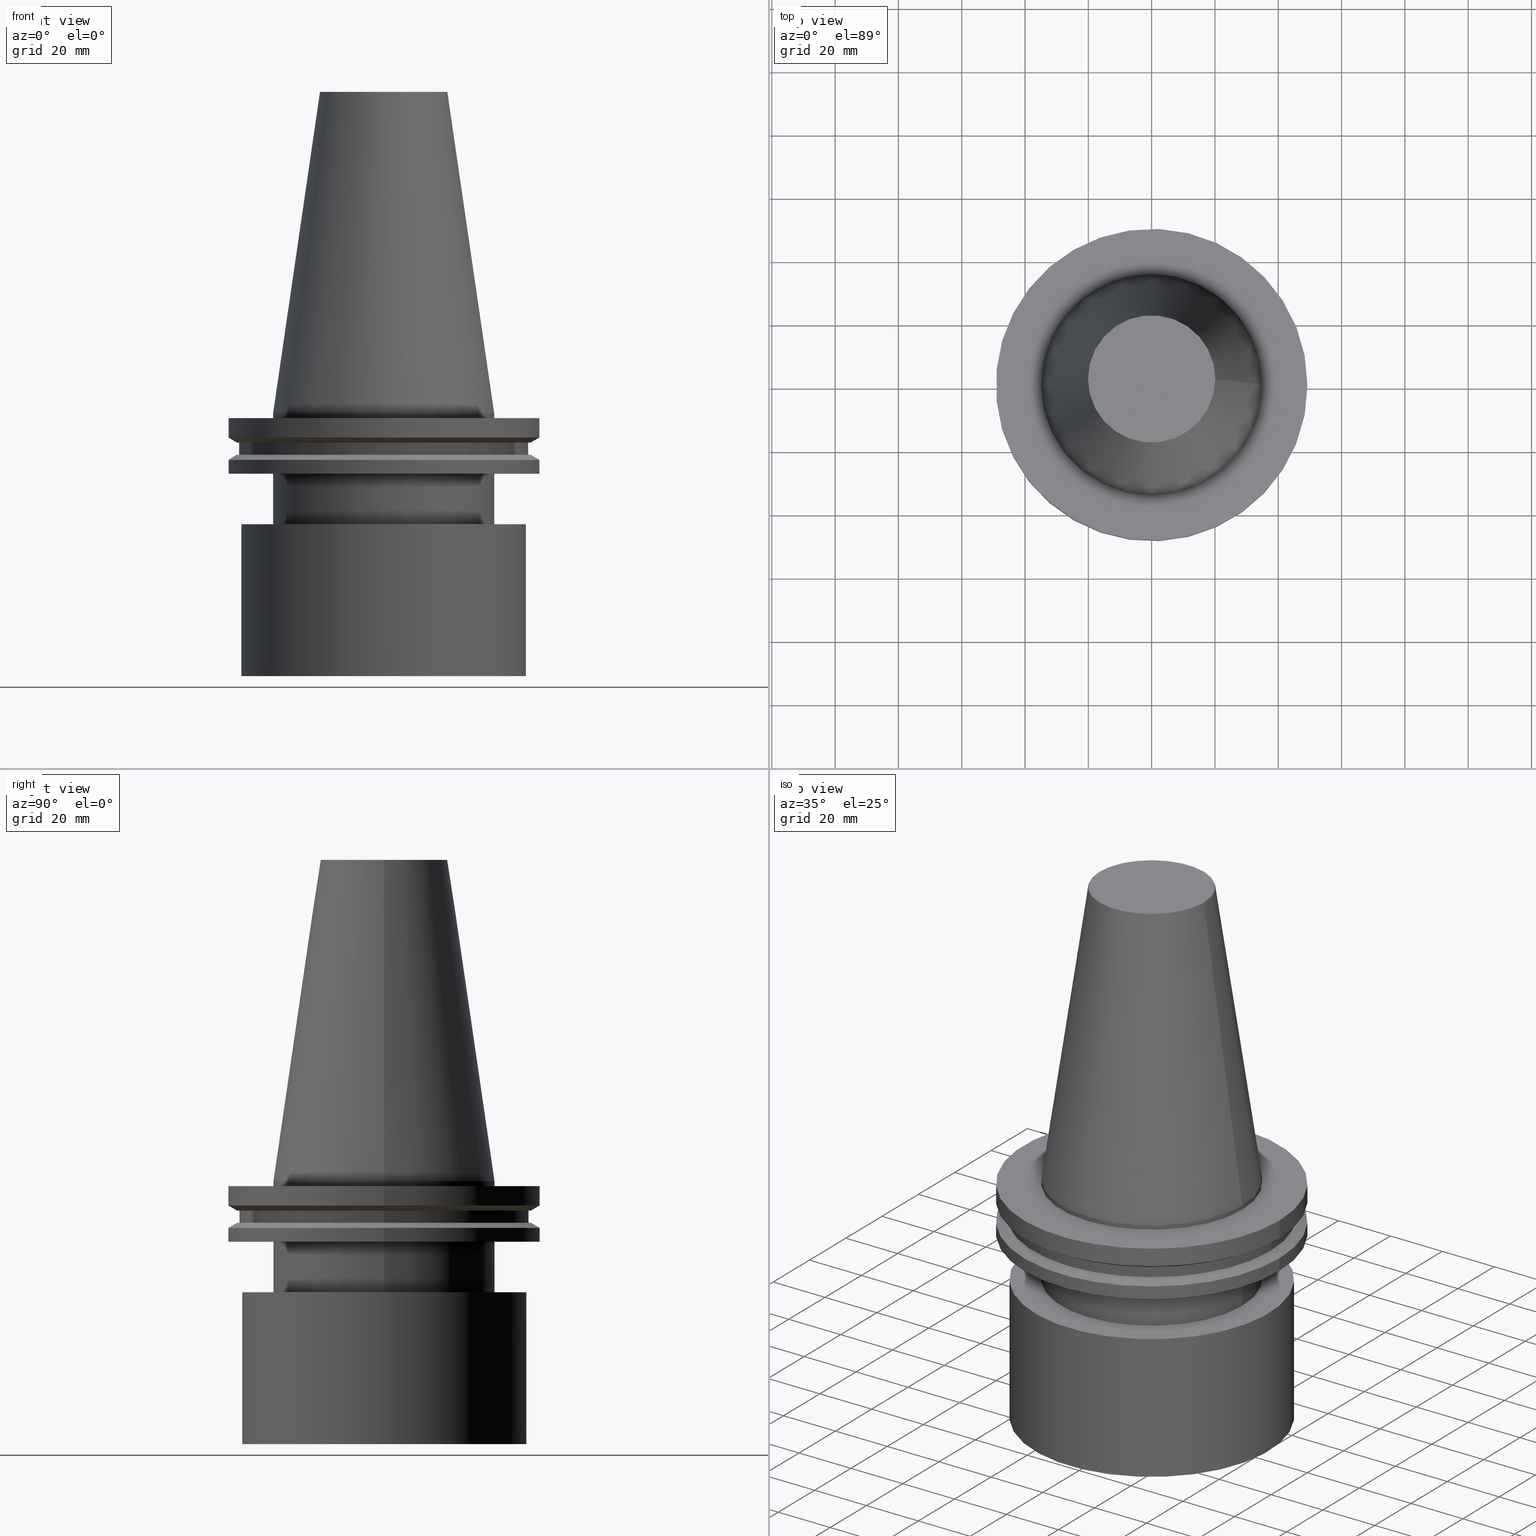
[diagram: canonical four-view strip — front | top / right | iso, engineering-drawing reading convention]
A machine part, canonical four-view strip (front | top / right | iso — engineering-drawing reading convention). The complete STEP part file that produces these views, byte-faithful:
ISO-10303-21;
HEADER;
FILE_DESCRIPTION (( 'STEP AP203' ),
    '1' );
FILE_NAME ('11.326.974.stp',
    '2022-03-09T15:09:26',
    ( '' ),
    ( '' ),
    'SwSTEP 2.0',
    'SolidWorks 2021',
    '' );
FILE_SCHEMA (( 'CONFIG_CONTROL_DESIGN' ));
ENDSEC;

DATA;
#1 = FACE_BOUND ( 'NONE', #127, .T. ) ;
#2 = VERTEX_POINT ( 'NONE', #373 ) ;
#3 = AXIS2_PLACEMENT_3D ( 'NONE', #23, #105, #293 ) ;
#4 = CARTESIAN_POINT ( 'NONE',  ( 20.10819343178871321, 0.000000000000000000, 101.5999999999999801 ) ) ;
#5 = DIRECTION ( 'NONE',  ( 0.000000000000000000, -1.000000000000000000, -3.576656801789151849E-17 ) ) ;
#6 = PRODUCT_RELATED_PRODUCT_CATEGORY ( 'detail', '', ( #196 ) ) ;
#7 = APPROVAL_DATE_TIME ( #289, #248 ) ;
#8 = EDGE_LOOP ( 'NONE', ( #227 ) ) ;
#9 = FACE_BOUND ( 'NONE', #8, .T. ) ;
#10 = EDGE_LOOP ( 'NONE', ( #63 ) ) ;
#11 = CC_DESIGN_APPROVAL ( #248, ( #361 ) ) ;
#12 = EDGE_LOOP ( 'NONE', ( #259 ) ) ;
#13 = CC_DESIGN_PERSON_AND_ORGANIZATION_ASSIGNMENT ( #96, #282, ( #361 ) ) ;
#14 = CYLINDRICAL_SURFACE ( 'NONE', #368, 45.64500000000000313 ) ;
#15 = COORDINATED_UNIVERSAL_TIME_OFFSET ( 6, 0, .BEHIND. ) ;
#16 = APPROVAL_STATUS ( 'not_yet_approved' ) ;
#17 = CARTESIAN_POINT ( 'NONE',  ( 0.000000000000000000, 0.000000000000000000, -13.05499999999999794 ) ) ;
#18 = FACE_OUTER_BOUND ( 'NONE', #265, .T. ) ;
#19 = CARTESIAN_POINT ( 'NONE',  ( 0.000000000000000000, 0.000000000000000000, -9.204999999999991189 ) ) ;
#20 = DIRECTION ( 'NONE',  ( 1.000000000000000000, 0.000000000000000000, 0.000000000000000000 ) ) ;
#21 = DIRECTION ( 'NONE',  ( 1.000000000000000000, 0.000000000000000000, 0.000000000000000000 ) ) ;
#22 = CYLINDRICAL_SURFACE ( 'NONE', #341, 49.21499999999998920 ) ;
#23 = CARTESIAN_POINT ( 'NONE',  ( 0.000000000000000000, 49.21499999999999631, -1.499999999999992895 ) ) ;
#24 = CARTESIAN_POINT ( 'NONE',  ( 0.000000000000000000, 0.000000000000000000, -7.602389855251287187 ) ) ;
#25 = CARTESIAN_POINT ( 'NONE',  ( 0.000000000000000000, 44.99609999999999843, -35.00000000000000000 ) ) ;
#26 = AXIS2_PLACEMENT_3D ( 'NONE', #358, #77, #108 ) ;
#27 = VERTEX_POINT ( 'NONE', #88 ) ;
#28 = EDGE_LOOP ( 'NONE', ( #87 ) ) ;
#29 = CC_DESIGN_PERSON_AND_ORGANIZATION_ASSIGNMENT ( #128, #380, ( #196 ) ) ;
#30 = DIRECTION ( 'NONE',  ( 0.000000000000000000, -3.576656801789151849E-17, 1.000000000000000000 ) ) ;
#31 = ORIENTED_EDGE ( 'NONE', *, *, #111, .T. ) ;
#32 = AXIS2_PLACEMENT_3D ( 'NONE', #189, #317, #94 ) ;
#33 = CIRCLE ( 'NONE', #86, 34.92499999999999005 ) ;
#34 = EDGE_LOOP ( 'NONE', ( #314 ) ) ;
#35 = CARTESIAN_POINT ( 'NONE',  ( 0.000000000000000000, 0.000000000000000000, 101.5999999999999943 ) ) ;
#36 = EDGE_CURVE ( 'NONE', #369, #369, #393, .T. ) ;
#37 = CC_DESIGN_SECURITY_CLASSIFICATION ( #272, ( #208 ) ) ;
#38 = FACE_OUTER_BOUND ( 'NONE', #190, .T. ) ;
#39 = EDGE_LOOP ( 'NONE', ( #319 ) ) ;
#40 = DIRECTION ( 'NONE',  ( 0.000000000000000000, 0.000000000000000000, -1.000000000000000000 ) ) ;
#41 = FACE_BOUND ( 'NONE', #188, .T. ) ;
#42 = FACE_OUTER_BOUND ( 'NONE', #95, .T. ) ;
#43 = APPROVAL_DATE_TIME ( #197, #98 ) ;
#44 = FACE_OUTER_BOUND ( 'NONE', #215, .T. ) ;
#45 = DIRECTION ( 'NONE',  ( 1.000000000000000000, 0.000000000000000000, 0.000000000000000000 ) ) ;
#46 = DIRECTION ( 'NONE',  ( -0.000000000000000000, -0.000000000000000000, 1.000000000000000000 ) ) ;
#47 = FACE_OUTER_BOUND ( 'NONE', #262, .T. ) ;
#48 = CIRCLE ( 'NONE', #224, 34.92499999999999716 ) ;
#49 = PERSON_AND_ORGANIZATION ( #200, #60 ) ;
#50 = EDGE_CURVE ( 'NONE', #280, #280, #220, .T. ) ;
#51 = ORIENTED_EDGE ( 'NONE', *, *, #288, .F. ) ;
#52 = DATE_AND_TIME ( #173, #99 ) ;
#53 = EDGE_LOOP ( 'NONE', ( #64 ) ) ;
#54 = ADVANCED_FACE ( 'NONE', ( #329, #364 ), #22, .T. ) ;
#55 = PERSON_AND_ORGANIZATION ( #200, #60 ) ;
#56 = AXIS2_PLACEMENT_3D ( 'NONE', #130, #40, #164 ) ;
#57 = EDGE_LOOP ( 'NONE', ( #150 ) ) ;
#58 = CARTESIAN_POINT ( 'NONE',  ( 45.64500000000000313, 0.000000000000000000, -9.204999999999991189 ) ) ;
#59 = EDGE_LOOP ( 'NONE', ( #306 ) ) ;
#60 = ORGANIZATION ( 'UNSPECIFIED', 'UNSPECIFIED', '' ) ;
#61 = APPROVAL_PERSON_ORGANIZATION ( #55, #366, #181 ) ;
#62 = AXIS2_PLACEMENT_3D ( 'NONE', #17, #385, #323 ) ;
#63 = ORIENTED_EDGE ( 'NONE', *, *, #203, .T. ) ;
#64 = ORIENTED_EDGE ( 'NONE', *, *, #124, .T. ) ;
#65 = DIRECTION ( 'NONE',  ( 1.000000000000000000, 0.000000000000000000, 0.000000000000000000 ) ) ;
#66 = EDGE_LOOP ( 'NONE', ( #31 ) ) ;
#67 = MECHANICAL_CONTEXT ( 'NONE', #296, 'mechanical' ) ;
#68 = LOCAL_TIME ( 9, 9, 26.00000000000000000, #15 ) ;
#69 = EDGE_LOOP ( 'NONE', ( #131 ) ) ;
#70 = DIRECTION ( 'NONE',  ( 1.000000000000000000, 0.000000000000000000, 0.000000000000000000 ) ) ;
#71 = PERSON_AND_ORGANIZATION ( #200, #60 ) ;
#72 = CARTESIAN_POINT ( 'NONE',  ( 0.000000000000000000, 0.000000000000000000, 101.5999999999999943 ) ) ;
#73 = APPROVAL_STATUS ( 'not_yet_approved' ) ;
#74 = DIRECTION ( 'NONE',  ( 0.000000000000000000, 0.000000000000000000, -1.000000000000000000 ) ) ;
#75 = CARTESIAN_POINT ( 'NONE',  ( 0.000000000000000000, 0.000000000000000000, -1.499999999999987566 ) ) ;
#76 = DIRECTION ( 'NONE',  ( 1.000000000000000000, 0.000000000000000000, 0.000000000000000000 ) ) ;
#77 = DIRECTION ( 'NONE',  ( -0.000000000000000000, -0.000000000000000000, 1.000000000000000000 ) ) ;
#78 = AXIS2_PLACEMENT_3D ( 'NONE', #19, #136, #268 ) ;
#79 = CARTESIAN_POINT ( 'NONE',  ( 0.000000000000000000, 0.000000000000000000, 0.000000000000000000 ) ) ;
#80 = FACE_OUTER_BOUND ( 'NONE', #28, .T. ) ;
#81 = DIRECTION ( 'NONE',  ( -0.000000000000000000, 3.576656801789151849E-17, -1.000000000000000000 ) ) ;
#82 = DIRECTION ( 'NONE',  ( 1.000000000000000000, 0.000000000000000000, 0.000000000000000000 ) ) ;
#83 = EDGE_CURVE ( 'NONE', #335, #335, #109, .T. ) ;
#84 = CARTESIAN_POINT ( 'NONE',  ( 34.92499999999999716, 0.000000000000000000, -35.00000000000000000 ) ) ;
#85 = AXIS2_PLACEMENT_3D ( 'NONE', #247, #30, #5 ) ;
#86 = AXIS2_PLACEMENT_3D ( 'NONE', #390, #389, #21 ) ;
#87 = ORIENTED_EDGE ( 'NONE', *, *, #36, .T. ) ;
#88 = CARTESIAN_POINT ( 'NONE',  ( 0.000000000000000000, 44.99609999999999843, -83.00719999999999743 ) ) ;
#89 = CIRCLE ( 'NONE', #349, 44.99609999999999843 ) ;
#90 = VERTEX_POINT ( 'NONE', #144 ) ;
#91 = PLANE ( 'NONE',  #56 ) ;
#92 = ADVANCED_FACE ( 'NONE', ( #198 ), #395, .T. ) ;
#93 = AXIS2_PLACEMENT_3D ( 'NONE', #267, #101, #235 ) ;
#94 = DIRECTION ( 'NONE',  ( -1.000000000000000000, 0.000000000000000000, 0.000000000000000000 ) ) ;
#95 = EDGE_LOOP ( 'NONE', ( #346 ) ) ;
#96 = PERSON_AND_ORGANIZATION ( #200, #60 ) ;
#97 = ORIENTED_EDGE ( 'NONE', *, *, #298, .F. ) ;
#98 = APPROVAL ( #73, 'UNSPECIFIED' ) ;
#99 = LOCAL_TIME ( 9, 9, 26.00000000000000000, #137 ) ;
#100 = DIRECTION ( 'NONE',  ( 1.000000000000000000, 0.000000000000000000, 0.000000000000000000 ) ) ;
#101 = DIRECTION ( 'NONE',  ( -0.000000000000000000, -0.000000000000000000, 1.000000000000000000 ) ) ;
#102 = DIRECTION ( 'NONE',  ( 0.000000000000000000, 1.000000000000000000, 0.000000000000000000 ) ) ;
#103 = ADVANCED_FACE ( 'NONE', ( #41, #332 ), #352, .F. ) ;
#104 = DIRECTION ( 'NONE',  ( 1.000000000000000000, 0.000000000000000000, 0.000000000000000000 ) ) ;
#105 = DIRECTION ( 'NONE',  ( 0.000000000000000000, 0.000000000000000000, -1.000000000000000000 ) ) ;
#106 = DIRECTION ( 'NONE',  ( -0.000000000000000000, -0.000000000000000000, 1.000000000000000000 ) ) ;
#107 = AXIS2_PLACEMENT_3D ( 'NONE', #290, #254, #374 ) ;
#108 = DIRECTION ( 'NONE',  ( 1.000000000000000000, 0.000000000000000000, 0.000000000000000000 ) ) ;
#109 = CIRCLE ( 'NONE', #307, 49.21499999999999631 ) ;
#110 = CARTESIAN_POINT ( 'NONE',  ( 0.000000000000000000, 0.000000000000000000, 101.5999999999999801 ) ) ;
#111 = EDGE_CURVE ( 'NONE', #149, #149, #33, .T. ) ;
#112 = FACE_OUTER_BOUND ( 'NONE', #34, .T. ) ;
#113 = CARTESIAN_POINT ( 'NONE',  ( 49.21499999999998920, 0.000000000000000000, -19.04999999999999716 ) ) ;
#114 = AXIS2_PLACEMENT_3D ( 'NONE', #177, #363, #100 ) ;
#115 = ADVANCED_FACE ( 'NONE', ( #138, #292 ), #174, .F. ) ;
#116 =( LENGTH_UNIT ( ) NAMED_UNIT ( * ) SI_UNIT ( .MILLI., .METRE. ) );
#117 = CARTESIAN_POINT ( 'NONE',  ( 45.64500000000000313, 0.000000000000000000, -13.05499999999999794 ) ) ;
#118 = LOCAL_TIME ( 9, 9, 26.00000000000000000, #351 ) ;
#119 = MANIFOLD_SOLID_BREP ( 'CKB', #159 ) ;
#120 = DATE_TIME_ROLE ( 'creation_date' ) ;
#121 = ADVANCED_FACE ( 'NONE', ( #360, #47 ), #269, .T. ) ;
#122 = ORIENTED_EDGE ( 'NONE', *, *, #288, .T. ) ;
#123 = DIRECTION ( 'NONE',  ( 0.000000000000000000, -0.000000000000000000, 1.000000000000000000 ) ) ;
#124 = EDGE_CURVE ( 'NONE', #311, #311, #246, .T. ) ;
#125 = AXIS2_PLACEMENT_3D ( 'NONE', #206, #301, #140 ) ;
#126 = AXIS2_PLACEMENT_3D ( 'NONE', #79, #139, #205 ) ;
#127 = EDGE_LOOP ( 'NONE', ( #348 ) ) ;
#128 = PERSON_AND_ORGANIZATION ( #200, #60 ) ;
#129 = ORIENTED_EDGE ( 'NONE', *, *, #353, .T. ) ;
#130 = CARTESIAN_POINT ( 'NONE',  ( 0.000000000000000000, 20.10819343178871321, 101.5999999999999943 ) ) ;
#131 = ORIENTED_EDGE ( 'NONE', *, *, #298, .T. ) ;
#132 = DIRECTION ( 'NONE',  ( -0.000000000000000000, -0.000000000000000000, 1.000000000000000000 ) ) ;
#133 = CYLINDRICAL_SURFACE ( 'NONE', #93, 34.92499999999999005 ) ;
#134 = PRODUCT_DEFINITION_SHAPE ( 'NONE', 'NONE',  #361 ) ;
#135 = CYLINDRICAL_SURFACE ( 'NONE', #302, 44.99609999999999843 ) ;
#136 = DIRECTION ( 'NONE',  ( -0.000000000000000000, -0.000000000000000000, 1.000000000000000000 ) ) ;
#137 = COORDINATED_UNIVERSAL_TIME_OFFSET ( 6, 0, .BEHIND. ) ;
#138 = FACE_OUTER_BOUND ( 'NONE', #12, .T. ) ;
#139 = DIRECTION ( 'NONE',  ( 0.000000000000000000, 0.000000000000000000, -1.000000000000000000 ) ) ;
#140 = DIRECTION ( 'NONE',  ( 1.000000000000000000, 0.000000000000000000, 0.000000000000000000 ) ) ;
#141 = DIRECTION ( 'NONE',  ( 1.000000000000000000, 0.000000000000000000, 0.000000000000000000 ) ) ;
#142 = ADVANCED_BREP_SHAPE_REPRESENTATION ( '11.326.974', ( #119, #313 ), #252 ) ;
#143 = VERTEX_POINT ( 'NONE', #245 ) ;
#144 = CARTESIAN_POINT ( 'NONE',  ( 49.21500000000000341, 0.000000000000000000, -7.602389855251287187 ) ) ;
#145 = CIRCLE ( 'NONE', #308, 49.21499999999998920 ) ;
#146 = ADVANCED_FACE ( 'NONE', ( #44, #242 ), #133, .T. ) ;
#147 = ORIENTED_EDGE ( 'NONE', *, *, #124, .F. ) ;
#148 = CC_DESIGN_PERSON_AND_ORGANIZATION_ASSIGNMENT ( #49, #275, ( #208 ) ) ;
#149 = VERTEX_POINT ( 'NONE', #211 ) ;
#150 = ORIENTED_EDGE ( 'NONE', *, *, #312, .F. ) ;
#151 = ADVANCED_FACE ( 'NONE', ( #354, #297 ), #260, .T. ) ;
#152 = EDGE_LOOP ( 'NONE', ( #51 ) ) ;
#153 = CARTESIAN_POINT ( 'NONE',  ( 0.000000000000000000, 49.21499999999998920, -19.04999999999999716 ) ) ;
#154 = ORIENTED_EDGE ( 'NONE', *, *, #50, .F. ) ;
#155 = FACE_OUTER_BOUND ( 'NONE', #160, .T. ) ;
#156 = EDGE_LOOP ( 'NONE', ( #226 ) ) ;
#157 = LOCAL_TIME ( 9, 9, 26.00000000000000000, #183 ) ;
#158 = CIRCLE ( 'NONE', #392, 49.21500000000000341 ) ;
#159 = CLOSED_SHELL ( 'NONE', ( #165, #229, #121, #218, #54, #251, #103, #225, #115, #151, #258, #277, #146, #384, #286, #92 ) ) ;
#160 = EDGE_LOOP ( 'NONE', ( #222 ) ) ;
#161 = FACE_OUTER_BOUND ( 'NONE', #212, .T. ) ;
#162 = APPROVAL_ROLE ( '' ) ;
#163 = ORIENTED_EDGE ( 'NONE', *, *, #203, .F. ) ;
#164 = DIRECTION ( 'NONE',  ( -1.000000000000000000, 0.000000000000000000, -0.000000000000000000 ) ) ;
#165 = ADVANCED_FACE ( 'NONE', ( #238, #300 ), #309, .T. ) ;
#166 = PLANE ( 'NONE',  #3 ) ;
#167 = PERSON_AND_ORGANIZATION ( #200, #60 ) ;
#168 = DIRECTION ( 'NONE',  ( -0.000000000000000000, -0.000000000000000000, 1.000000000000000000 ) ) ;
#169 = CARTESIAN_POINT ( 'NONE',  ( 0.000000000000000000, 1.717052784148521541E-15, -83.00719999999999743 ) ) ;
#170 = PERSON_AND_ORGANIZATION_ROLE ( 'classification_officer' ) ;
#171 = DIRECTION ( 'NONE',  ( -0.000000000000000000, -0.000000000000000000, 1.000000000000000000 ) ) ;
#172 = DIRECTION ( 'NONE',  ( -0.000000000000000000, 3.576656801789151849E-17, -1.000000000000000000 ) ) ;
#173 = CALENDAR_DATE ( 2022, 9, 3 ) ;
#174 = PLANE ( 'NONE',  #240 ) ;
#175 = CARTESIAN_POINT ( 'NONE',  ( 0.000000000000000000, 45.64500000000000313, -13.05499999999999794 ) ) ;
#176 = APPROVAL_PERSON_ORGANIZATION ( #71, #248, #162 ) ;
#177 = CARTESIAN_POINT ( 'NONE',  ( 0.000000000000000000, 0.000000000000000000, 101.5999999999999943 ) ) ;
#178 = DIRECTION ( 'NONE',  ( -0.000000000000000000, -0.000000000000000000, 1.000000000000000000 ) ) ;
#179 = VERTEX_POINT ( 'NONE', #305 ) ;
#180 = ORIENTED_EDGE ( 'NONE', *, *, #274, .F. ) ;
#181 = APPROVAL_ROLE ( '' ) ;
#182 = ORIENTED_EDGE ( 'NONE', *, *, #50, .T. ) ;
#183 = COORDINATED_UNIVERSAL_TIME_OFFSET ( 6, 0, .BEHIND. ) ;
#184 = EDGE_CURVE ( 'NONE', #2, #2, #310, .T. ) ;
#185 = CC_DESIGN_DATE_AND_TIME_ASSIGNMENT ( #52, #279, ( #272 ) ) ;
#186 = EDGE_LOOP ( 'NONE', ( #228 ) ) ;
#187 = DIRECTION ( 'NONE',  ( 1.000000000000000000, 0.000000000000000000, 0.000000000000000000 ) ) ;
#188 = EDGE_LOOP ( 'NONE', ( #147 ) ) ;
#189 = CARTESIAN_POINT ( 'NONE',  ( 0.000000000000000000, 0.000000000000000000, -14.65761014474876944 ) ) ;
#190 = EDGE_LOOP ( 'NONE', ( #180 ) ) ;
#191 = DIRECTION ( 'NONE',  ( -0.000000000000000000, -0.000000000000000000, 1.000000000000000000 ) ) ;
#192 = CIRCLE ( 'NONE', #26, 46.43919780457007818 ) ;
#193 = EDGE_LOOP ( 'NONE', ( #122 ) ) ;
#194 = FACE_OUTER_BOUND ( 'NONE', #53, .T. ) ;
#195 = CALENDAR_DATE ( 2022, 9, 3 ) ;
#196 = PRODUCT ( '11.326.974', '11.326.974', '', ( #67 ) ) ;
#197 = DATE_AND_TIME ( #195, #118 ) ;
#198 = FACE_OUTER_BOUND ( 'NONE', #69, .T. ) ;
#199 = CARTESIAN_POINT ( 'NONE',  ( 0.000000000000000000, 0.000000000000000000, -35.00000000000000000 ) ) ;
#200 = PERSON ( 'UNSPECIFIED', 'UNSPECIFIED', 'UNSPECIFIED', ('UNSPECIFIED'), ('UNSPECIFIED'), ('UNSPECIFIED') ) ;
#201 = AXIS2_PLACEMENT_3D ( 'NONE', #72, #106, #104 ) ;
#202 = DIRECTION ( 'NONE',  ( -1.000000000000000000, 0.000000000000000000, -0.000000000000000000 ) ) ;
#203 = EDGE_CURVE ( 'NONE', #90, #90, #158, .T. ) ;
#204 = DIRECTION ( 'NONE',  ( 1.000000000000000000, 0.000000000000000000, 0.000000000000000000 ) ) ;
#205 = DIRECTION ( 'NONE',  ( -1.000000000000000000, 0.000000000000000000, 0.000000000000000000 ) ) ;
#206 = CARTESIAN_POINT ( 'NONE',  ( 0.000000000000000000, 0.000000000000000000, -13.05499999999999794 ) ) ;
#207 = DIRECTION ( 'NONE',  ( 0.000000000000000000, 1.000000000000000000, 3.576656801789151849E-17 ) ) ;
#208 = PRODUCT_DEFINITION_FORMATION_WITH_SPECIFIED_SOURCE ( 'ANY', '', #196, .NOT_KNOWN. ) ;
#209 = VERTEX_POINT ( 'NONE', #334 ) ;
#210 = PERSON_AND_ORGANIZATION ( #200, #60 ) ;
#211 = CARTESIAN_POINT ( 'NONE',  ( 34.92499999999999005, 0.000000000000000000, 0.000000000000000000 ) ) ;
#212 = EDGE_LOOP ( 'NONE', ( #182 ) ) ;
#213 = APPROVAL_STATUS ( 'not_yet_approved' ) ;
#214 = VERTEX_POINT ( 'NONE', #339 ) ;
#215 = EDGE_LOOP ( 'NONE', ( #276 ) ) ;
#216 =( NAMED_UNIT ( * ) PLANE_ANGLE_UNIT ( ) SI_UNIT ( $, .RADIAN. ) );
#217 = CIRCLE ( 'NONE', #107, 45.64500000000000313 ) ;
#218 = ADVANCED_FACE ( 'NONE', ( #38, #315 ), #287, .F. ) ;
#219 = CC_DESIGN_APPROVAL ( #366, ( #272 ) ) ;
#220 = CIRCLE ( 'NONE', #359, 20.10819343178871321 ) ;
#221 = VERTEX_POINT ( 'NONE', #58 ) ;
#222 = ORIENTED_EDGE ( 'NONE', *, *, #83, .F. ) ;
#223 = FACE_OUTER_BOUND ( 'NONE', #39, .T. ) ;
#224 = AXIS2_PLACEMENT_3D ( 'NONE', #239, #46, #204 ) ;
#225 = ADVANCED_FACE ( 'NONE', ( #257, #194 ), #14, .T. ) ;
#226 = ORIENTED_EDGE ( 'NONE', *, *, #237, .T. ) ;
#227 = ORIENTED_EDGE ( 'NONE', *, *, #353, .F. ) ;
#228 = ORIENTED_EDGE ( 'NONE', *, *, #237, .F. ) ;
#229 = ADVANCED_FACE ( 'NONE', ( #161 ), #91, .F. ) ;
#230 = CONICAL_SURFACE ( 'NONE', #32, 49.21499999999998920, 1.047197551196554333 ) ;
#231 = AXIS2_PLACEMENT_3D ( 'NONE', #175, #74, #202 ) ;
#232 = CALENDAR_DATE ( 2022, 9, 3 ) ;
#233 = CARTESIAN_POINT ( 'NONE',  ( 0.000000000000000000, 46.43919780457007818, -9.204999999999998295 ) ) ;
#234 = DIRECTION ( 'NONE',  ( 1.000000000000000000, 0.000000000000000000, 0.000000000000000000 ) ) ;
#235 = DIRECTION ( 'NONE',  ( 1.000000000000000000, 0.000000000000000000, 0.000000000000000000 ) ) ;
#236 = DIRECTION ( 'NONE',  ( 1.000000000000000000, 0.000000000000000000, 0.000000000000000000 ) ) ;
#237 = EDGE_CURVE ( 'NONE', #221, #221, #217, .T. ) ;
#238 = FACE_BOUND ( 'NONE', #336, .T. ) ;
#239 = CARTESIAN_POINT ( 'NONE',  ( 0.000000000000000000, 0.000000000000000000, -19.04999999999999716 ) ) ;
#240 = AXIS2_PLACEMENT_3D ( 'NONE', #233, #327, #243 ) ;
#241 = AXIS2_PLACEMENT_3D ( 'NONE', #256, #375, #316 ) ;
#242 = FACE_OUTER_BOUND ( 'NONE', #193, .T. ) ;
#243 = DIRECTION ( 'NONE',  ( 1.000000000000000000, 0.000000000000000000, 0.000000000000000000 ) ) ;
#244 = PLANE ( 'NONE',  #85 ) ;
#245 = CARTESIAN_POINT ( 'NONE',  ( 34.92499999999999005, 0.000000000000000000, -1.499999999999987566 ) ) ;
#246 = CIRCLE ( 'NONE', #62, 45.64500000000000313 ) ;
#247 = CARTESIAN_POINT ( 'NONE',  ( 0.000000000000000000, 2.878057169260919058E-32, -35.00000000000000000 ) ) ;
#248 = APPROVAL ( #16, 'UNSPECIFIED' ) ;
#249 = CARTESIAN_POINT ( 'NONE',  ( 49.21499999999999631, 0.000000000000000000, -1.499999999999987566 ) ) ;
#250 = CALENDAR_DATE ( 2022, 9, 3 ) ;
#251 = ADVANCED_FACE ( 'NONE', ( #9, #223 ), #230, .T. ) ;
#252 =( GEOMETRIC_REPRESENTATION_CONTEXT ( 3 ) GLOBAL_UNCERTAINTY_ASSIGNED_CONTEXT ( ( #324 ) ) GLOBAL_UNIT_ASSIGNED_CONTEXT ( ( #116, #216, #347 ) ) REPRESENTATION_CONTEXT ( 'NONE', 'WORKASPACE' ) );
#253 = APPLICATION_PROTOCOL_DEFINITION ( 'international standard', 'config_control_design', 1994, #296 ) ;
#254 = DIRECTION ( 'NONE',  ( -0.000000000000000000, -0.000000000000000000, 1.000000000000000000 ) ) ;
#255 = APPROVAL_DATE_TIME ( #337, #366 ) ;
#256 = CARTESIAN_POINT ( 'NONE',  ( 0.000000000000000000, -1.925929944387235853E-31, -35.00000000000000000 ) ) ;
#257 = FACE_OUTER_BOUND ( 'NONE', #186, .T. ) ;
#258 = ADVANCED_FACE ( 'NONE', ( #155, #379 ), #345, .T. ) ;
#259 = ORIENTED_EDGE ( 'NONE', *, *, #338, .F. ) ;
#260 = CONICAL_SURFACE ( 'NONE', #78, 46.43919780457007818, 1.047197551196575205 ) ;
#261 = CC_DESIGN_PERSON_AND_ORGANIZATION_ASSIGNMENT ( #210, #170, ( #272 ) ) ;
#262 = EDGE_LOOP ( 'NONE', ( #263 ) ) ;
#263 = ORIENTED_EDGE ( 'NONE', *, *, #303, .T. ) ;
#264 = DATE_AND_TIME ( #322, #68 ) ;
#265 = EDGE_LOOP ( 'NONE', ( #97 ) ) ;
#266 = CC_DESIGN_DATE_AND_TIME_ASSIGNMENT ( #264, #120, ( #361 ) ) ;
#267 = CARTESIAN_POINT ( 'NONE',  ( 0.000000000000000000, 0.000000000000000000, 101.5999999999999943 ) ) ;
#268 = DIRECTION ( 'NONE',  ( 1.000000000000000000, 0.000000000000000000, 0.000000000000000000 ) ) ;
#269 = CYLINDRICAL_SURFACE ( 'NONE', #201, 34.92499999999999716 ) ;
#270 = FACE_BOUND ( 'NONE', #152, .T. ) ;
#271 = AXIS2_PLACEMENT_3D ( 'NONE', #75, #331, #236 ) ;
#272 = SECURITY_CLASSIFICATION ( '', '', #387 ) ;
#273 = DIRECTION ( 'NONE',  ( -0.000000000000000000, -0.000000000000000000, 1.000000000000000000 ) ) ;
#274 = EDGE_CURVE ( 'NONE', #371, #371, #145, .T. ) ;
#275 = PERSON_AND_ORGANIZATION_ROLE ( 'design_supplier' ) ;
#276 = ORIENTED_EDGE ( 'NONE', *, *, #111, .F. ) ;
#277 = ADVANCED_FACE ( 'NONE', ( #270, #42 ), #166, .F. ) ;
#278 = EDGE_LOOP ( 'NONE', ( #129 ) ) ;
#279 = DATE_TIME_ROLE ( 'classification_date' ) ;
#280 = VERTEX_POINT ( 'NONE', #4 ) ;
#281 = SHAPE_DEFINITION_REPRESENTATION ( #134, #142 ) ;
#282 = PERSON_AND_ORGANIZATION_ROLE ( 'creator' ) ;
#283 = LOCAL_TIME ( 9, 9, 26.00000000000000000, #356 ) ;
#284 = CC_DESIGN_APPROVAL ( #98, ( #208 ) ) ;
#285 = EDGE_LOOP ( 'NONE', ( #381 ) ) ;
#286 = ADVANCED_FACE ( 'NONE', ( #80, #18 ), #135, .T. ) ;
#287 = PLANE ( 'NONE',  #294 ) ;
#288 = EDGE_CURVE ( 'NONE', #143, #143, #320, .T. ) ;
#289 = DATE_AND_TIME ( #232, #283 ) ;
#290 = CARTESIAN_POINT ( 'NONE',  ( 0.000000000000000000, 0.000000000000000000, -9.204999999999991189 ) ) ;
#291 = APPLICATION_PROTOCOL_DEFINITION ( 'international standard', 'config_control_design', 1994, #365 ) ;
#292 = FACE_BOUND ( 'NONE', #156, .T. ) ;
#293 = DIRECTION ( 'NONE',  ( -1.000000000000000000, 0.000000000000000000, -0.000000000000000000 ) ) ;
#294 = AXIS2_PLACEMENT_3D ( 'NONE', #153, #123, #65 ) ;
#295 = PERSON_AND_ORGANIZATION_ROLE ( 'creator' ) ;
#296 = APPLICATION_CONTEXT ( 'configuration controlled 3d designs of mechanical parts and assemblies' ) ;
#297 = FACE_BOUND ( 'NONE', #59, .T. ) ;
#298 = EDGE_CURVE ( 'NONE', #27, #27, #89, .T. ) ;
#299 = CARTESIAN_POINT ( 'NONE',  ( 0.000000000000000000, 0.000000000000000000, -1.499999999999987566 ) ) ;
#300 = FACE_OUTER_BOUND ( 'NONE', #66, .T. ) ;
#301 = DIRECTION ( 'NONE',  ( -0.000000000000000000, -0.000000000000000000, 1.000000000000000000 ) ) ;
#302 = AXIS2_PLACEMENT_3D ( 'NONE', #386, #391, #102 ) ;
#303 = EDGE_CURVE ( 'NONE', #367, #367, #333, .T. ) ;
#304 = DIRECTION ( 'NONE',  ( 1.000000000000000000, 0.000000000000000000, 0.000000000000000000 ) ) ;
#305 = CARTESIAN_POINT ( 'NONE',  ( 46.43919780457007818, 0.000000000000000000, -13.05499999999999794 ) ) ;
#306 = ORIENTED_EDGE ( 'NONE', *, *, #338, .T. ) ;
#307 = AXIS2_PLACEMENT_3D ( 'NONE', #299, #273, #76 ) ;
#308 = AXIS2_PLACEMENT_3D ( 'NONE', #325, #132, #82 ) ;
#309 = CONICAL_SURFACE ( 'NONE', #126, 34.92499999999999005, 0.1448138465474119452 ) ;
#310 = CIRCLE ( 'NONE', #340, 49.21499999999998920 ) ;
#311 = VERTEX_POINT ( 'NONE', #117 ) ;
#312 = EDGE_CURVE ( 'NONE', #209, #209, #48, .T. ) ;
#313 = AXIS2_PLACEMENT_3D ( 'NONE', #321, #388, #234 ) ;
#314 = ORIENTED_EDGE ( 'NONE', *, *, #36, .F. ) ;
#315 = FACE_BOUND ( 'NONE', #343, .T. ) ;
#316 = DIRECTION ( 'NONE',  ( 0.000000000000000000, 1.000000000000000000, 0.000000000000000000 ) ) ;
#317 = DIRECTION ( 'NONE',  ( 0.000000000000000000, 0.000000000000000000, -1.000000000000000000 ) ) ;
#318 = EDGE_LOOP ( 'NONE', ( #163 ) ) ;
#319 = ORIENTED_EDGE ( 'NONE', *, *, #184, .T. ) ;
#320 = CIRCLE ( 'NONE', #271, 34.92499999999999005 ) ;
#321 = CARTESIAN_POINT ( 'NONE',  ( 0.000000000000000000, 0.000000000000000000, 0.000000000000000000 ) ) ;
#322 = CALENDAR_DATE ( 2022, 9, 3 ) ;
#323 = DIRECTION ( 'NONE',  ( 1.000000000000000000, 0.000000000000000000, 0.000000000000000000 ) ) ;
#324 = UNCERTAINTY_MEASURE_WITH_UNIT (LENGTH_MEASURE( 1.000000000000000082E-05 ), #116, 'distance_accuracy_value', 'NONE');
#325 = CARTESIAN_POINT ( 'NONE',  ( 0.000000000000000000, 0.000000000000000000, -19.04999999999999716 ) ) ;
#326 = PERSON_AND_ORGANIZATION ( #200, #60 ) ;
#327 = DIRECTION ( 'NONE',  ( 0.000000000000000000, -0.000000000000000000, 1.000000000000000000 ) ) ;
#328 = DIRECTION ( 'NONE',  ( -0.000000000000000000, -0.000000000000000000, 1.000000000000000000 ) ) ;
#329 = FACE_OUTER_BOUND ( 'NONE', #285, .T. ) ;
#330 = CARTESIAN_POINT ( 'NONE',  ( 0.000000000000000000, 0.000000000000000000, -14.65761014474876944 ) ) ;
#331 = DIRECTION ( 'NONE',  ( -0.000000000000000000, -0.000000000000000000, 1.000000000000000000 ) ) ;
#332 = FACE_OUTER_BOUND ( 'NONE', #278, .T. ) ;
#333 = CIRCLE ( 'NONE', #376, 34.92499999999999716 ) ;
#334 = CARTESIAN_POINT ( 'NONE',  ( 34.92499999999999716, 0.000000000000000000, -19.04999999999999716 ) ) ;
#335 = VERTEX_POINT ( 'NONE', #249 ) ;
#336 = EDGE_LOOP ( 'NONE', ( #154 ) ) ;
#337 = DATE_AND_TIME ( #250, #157 ) ;
#338 = EDGE_CURVE ( 'NONE', #214, #214, #192, .T. ) ;
#339 = CARTESIAN_POINT ( 'NONE',  ( 46.43919780457007818, 0.000000000000000000, -9.204999999999991189 ) ) ;
#340 = AXIS2_PLACEMENT_3D ( 'NONE', #330, #178, #304 ) ;
#341 = AXIS2_PLACEMENT_3D ( 'NONE', #357, #168, #141 ) ;
#342 = APPROVAL_PERSON_ORGANIZATION ( #326, #98, #382 ) ;
#343 = EDGE_LOOP ( 'NONE', ( #344 ) ) ;
#344 = ORIENTED_EDGE ( 'NONE', *, *, #312, .T. ) ;
#345 = CYLINDRICAL_SURFACE ( 'NONE', #114, 49.21499999999999631 ) ;
#346 = ORIENTED_EDGE ( 'NONE', *, *, #83, .T. ) ;
#347 =( NAMED_UNIT ( * ) SI_UNIT ( $, .STERADIAN. ) SOLID_ANGLE_UNIT ( ) );
#348 = ORIENTED_EDGE ( 'NONE', *, *, #303, .F. ) ;
#349 = AXIS2_PLACEMENT_3D ( 'NONE', #169, #172, #355 ) ;
#350 = DIRECTION ( 'NONE',  ( -0.000000000000000000, -0.000000000000000000, 1.000000000000000000 ) ) ;
#351 = COORDINATED_UNIVERSAL_TIME_OFFSET ( 6, 0, .BEHIND. ) ;
#352 = PLANE ( 'NONE',  #231 ) ;
#353 = EDGE_CURVE ( 'NONE', #179, #179, #372, .T. ) ;
#354 = FACE_OUTER_BOUND ( 'NONE', #318, .T. ) ;
#355 = DIRECTION ( 'NONE',  ( 0.000000000000000000, 1.000000000000000000, 0.000000000000000000 ) ) ;
#356 = COORDINATED_UNIVERSAL_TIME_OFFSET ( 6, 0, .BEHIND. ) ;
#357 = CARTESIAN_POINT ( 'NONE',  ( 0.000000000000000000, 0.000000000000000000, 101.5999999999999943 ) ) ;
#358 = CARTESIAN_POINT ( 'NONE',  ( 0.000000000000000000, 0.000000000000000000, -9.204999999999991189 ) ) ;
#359 = AXIS2_PLACEMENT_3D ( 'NONE', #110, #171, #45 ) ;
#360 = FACE_OUTER_BOUND ( 'NONE', #57, .T. ) ;
#361 = PRODUCT_DEFINITION ( 'UNKNOWN', '', #208, #362 ) ;
#362 = DESIGN_CONTEXT ( 'detailed design', #365, 'design' ) ;
#363 = DIRECTION ( 'NONE',  ( -0.000000000000000000, -0.000000000000000000, 1.000000000000000000 ) ) ;
#364 = FACE_OUTER_BOUND ( 'NONE', #377, .T. ) ;
#365 = APPLICATION_CONTEXT ( 'configuration controlled 3d designs of mechanical parts and assemblies' ) ;
#366 = APPROVAL ( #213, 'UNSPECIFIED' ) ;
#367 = VERTEX_POINT ( 'NONE', #84 ) ;
#368 = AXIS2_PLACEMENT_3D ( 'NONE', #35, #350, #70 ) ;
#369 = VERTEX_POINT ( 'NONE', #25 ) ;
#370 = ORIENTED_EDGE ( 'NONE', *, *, #274, .T. ) ;
#371 = VERTEX_POINT ( 'NONE', #113 ) ;
#372 = CIRCLE ( 'NONE', #125, 46.43919780457007818 ) ;
#373 = CARTESIAN_POINT ( 'NONE',  ( 49.21499999999998920, 0.000000000000000000, -14.65761014474876944 ) ) ;
#374 = DIRECTION ( 'NONE',  ( 1.000000000000000000, 0.000000000000000000, 0.000000000000000000 ) ) ;
#375 = DIRECTION ( 'NONE',  ( -0.000000000000000000, 3.576656801789151849E-17, -1.000000000000000000 ) ) ;
#376 = AXIS2_PLACEMENT_3D ( 'NONE', #199, #328, #20 ) ;
#377 = EDGE_LOOP ( 'NONE', ( #370 ) ) ;
#378 = AXIS2_PLACEMENT_3D ( 'NONE', #383, #81, #207 ) ;
#379 = FACE_OUTER_BOUND ( 'NONE', #10, .T. ) ;
#380 = PERSON_AND_ORGANIZATION_ROLE ( 'design_owner' ) ;
#381 = ORIENTED_EDGE ( 'NONE', *, *, #184, .F. ) ;
#382 = APPROVAL_ROLE ( '' ) ;
#383 = CARTESIAN_POINT ( 'NONE',  ( 0.000000000000000000, 44.99609999999999843, -83.00719999999999743 ) ) ;
#384 = ADVANCED_FACE ( 'NONE', ( #1, #112 ), #244, .T. ) ;
#385 = DIRECTION ( 'NONE',  ( -0.000000000000000000, -0.000000000000000000, 1.000000000000000000 ) ) ;
#386 = CARTESIAN_POINT ( 'NONE',  ( 0.000000000000000000, 1.717052784148521541E-15, -83.00719999999999743 ) ) ;
#387 = SECURITY_CLASSIFICATION_LEVEL ( 'unclassified' ) ;
#388 = DIRECTION ( 'NONE',  ( 0.000000000000000000, 0.000000000000000000, 1.000000000000000000 ) ) ;
#389 = DIRECTION ( 'NONE',  ( -0.000000000000000000, -0.000000000000000000, 1.000000000000000000 ) ) ;
#390 = CARTESIAN_POINT ( 'NONE',  ( 0.000000000000000000, 0.000000000000000000, 0.000000000000000000 ) ) ;
#391 = DIRECTION ( 'NONE',  ( -0.000000000000000000, 3.576656801789151849E-17, -1.000000000000000000 ) ) ;
#392 = AXIS2_PLACEMENT_3D ( 'NONE', #24, #191, #187 ) ;
#393 = CIRCLE ( 'NONE', #241, 44.99609999999999843 ) ;
#394 = CC_DESIGN_PERSON_AND_ORGANIZATION_ASSIGNMENT ( #167, #295, ( #208 ) ) ;
#395 = PLANE ( 'NONE',  #378 ) ;
ENDSEC;
END-ISO-10303-21;
